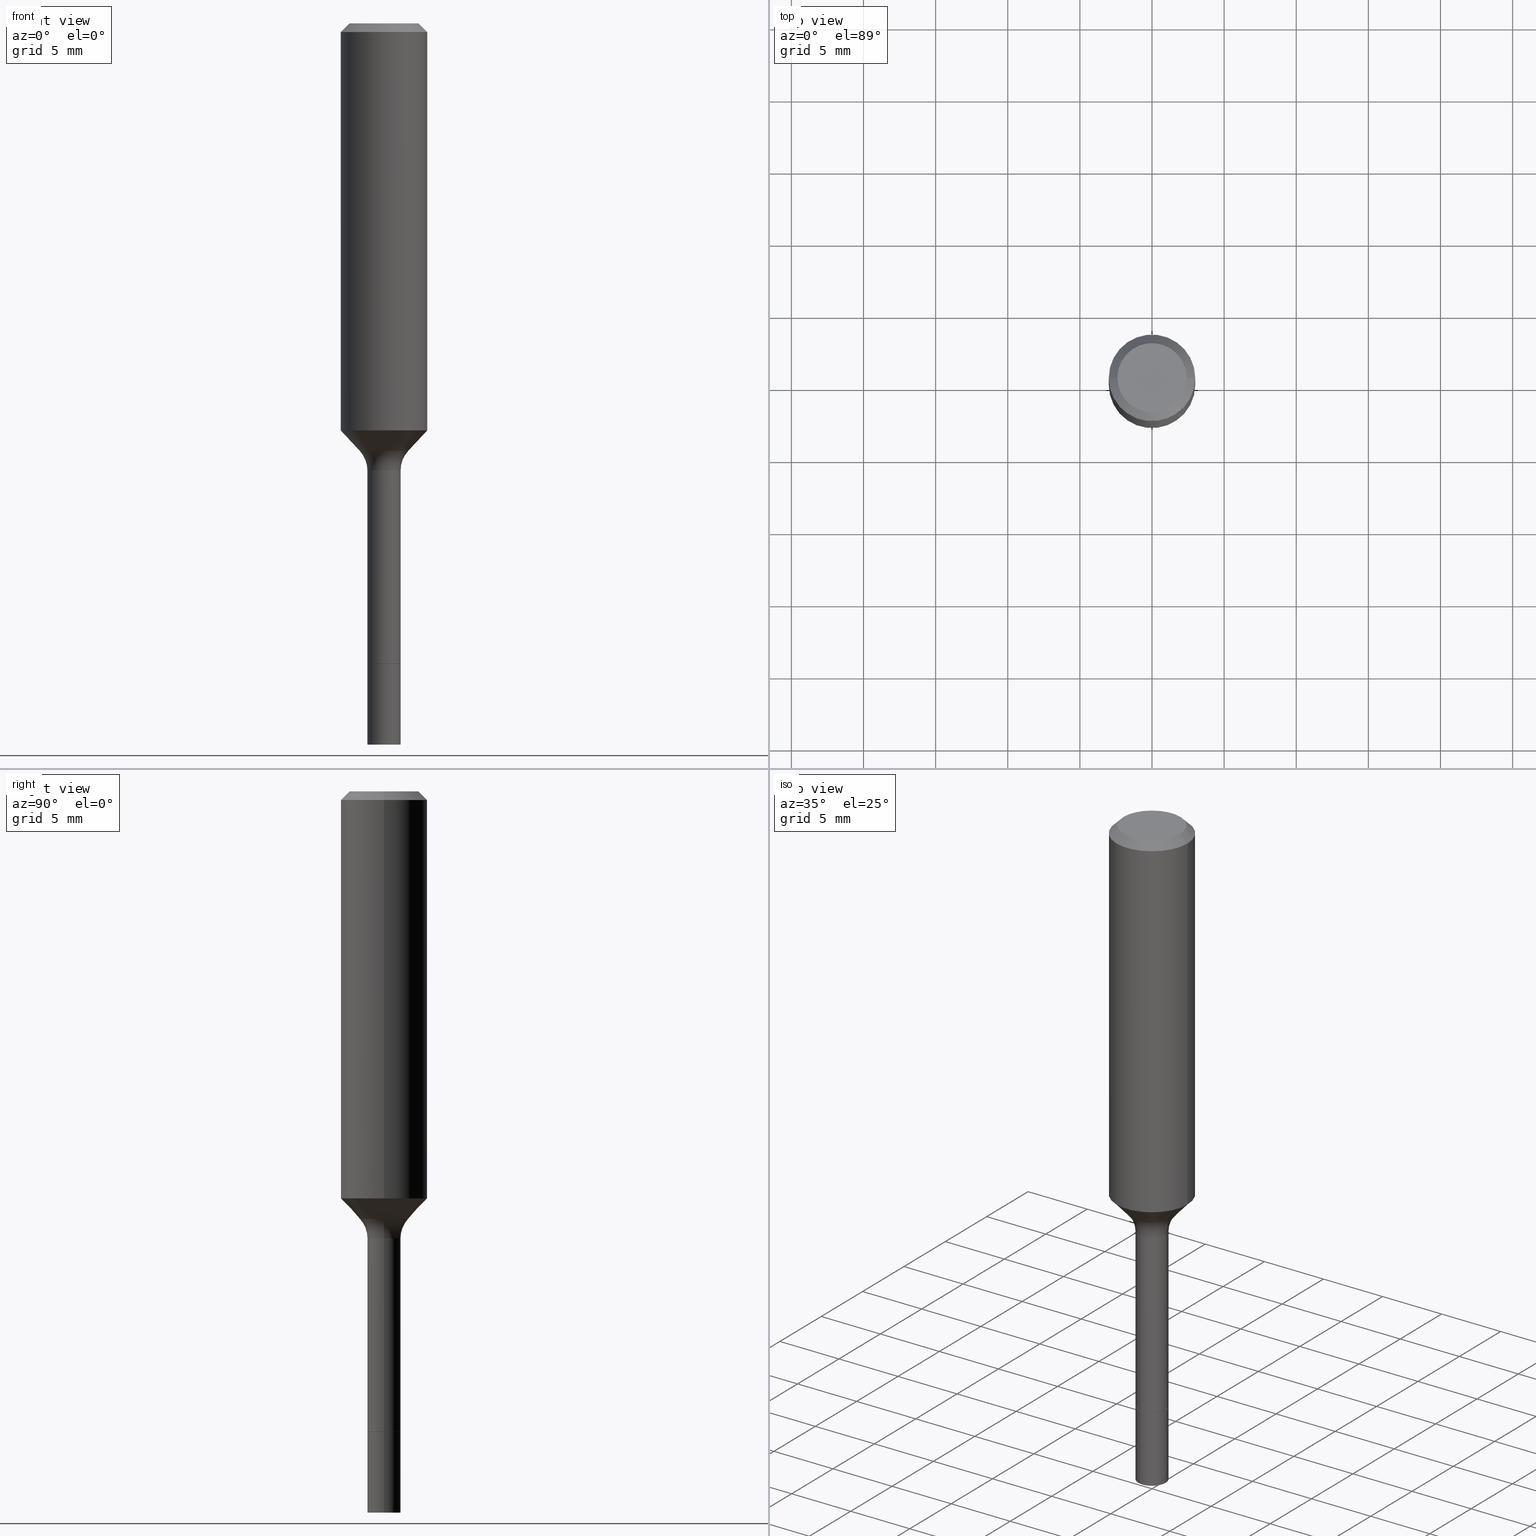
[diagram: canonical four-view strip — front | top / right | iso, engineering-drawing reading convention]
A machine part, canonical four-view strip (front | top / right | iso — engineering-drawing reading convention). The complete STEP part file that produces these views, byte-faithful:
ISO-10303-21;
HEADER;
FILE_DESCRIPTION (( 'STEP AP203' ),
    '1' );
FILE_NAME ('67068.STEP',
    '2025-04-01T15:27:25',
    ( '' ),
    ( '' ),
    'SwSTEP 2.0',
    'SolidWorks 2024',
    '' );
FILE_SCHEMA (( 'CONFIG_CONTROL_DESIGN' ));
ENDSEC;

DATA;
#1 = VERTEX_POINT ( 'NONE', #415 ) ;
#2 = PERSON_AND_ORGANIZATION ( #445, #25 ) ;
#3 = CARTESIAN_POINT ( 'NONE',  ( -0.04529999999999993060, -4.858609577209192694E-15, -1.220499999999999918 ) ) ;
#4 = ORIENTED_EDGE ( 'NONE', *, *, #148, .T. ) ;
#5 = AXIS2_PLACEMENT_3D ( 'NONE', #478, #119, #261 ) ;
#6 = CONICAL_SURFACE ( 'NONE', #41, 0.1180999999999999966, 0.7853981633974463916 ) ;
#7 = ADVANCED_FACE ( 'NONE', ( #62 ), #470, .T. ) ;
#8 = CARTESIAN_POINT ( 'NONE',  ( 4.813905344975441835E-29, -6.872981015512731707E-15, -1.968500000000000139 ) ) ;
#9 = ORIENTED_EDGE ( 'NONE', *, *, #378, .F. ) ;
#10 = DIRECTION ( 'NONE',  ( 1.000000000000000000, -6.982962677686265133E-15, 0.000000000000000000 ) ) ;
#11 = EDGE_CURVE ( 'NONE', #54, #259, #20, .T. ) ;
#12 = ORIENTED_EDGE ( 'NONE', *, *, #77, .F. ) ;
#13 = CARTESIAN_POINT ( 'NONE',  ( 0.06679170387046629020, -4.537262185582210403E-15, -1.165940131195000173 ) ) ;
#14 = CLOSED_SHELL ( 'NONE', ( #274, #70, #95, #7, #479, #490, #508, #502, #460, #357, #260, #235, #312, #182 ) ) ;
#15 = AXIS2_PLACEMENT_3D ( 'NONE', #96, #252, #222 ) ;
#16 = DIRECTION ( 'NONE',  ( -2.445468806185136597E-29, 3.491481338843145583E-15, 1.000000000000000000 ) ) ;
#17 = VERTEX_POINT ( 'NONE', #226 ) ;
#18 = EDGE_CURVE ( 'NONE', #481, #494, #454, .T. ) ;
#19 = DIRECTION ( 'NONE',  ( -2.445468806185136597E-29, 3.491481338843145583E-15, 1.000000000000000000 ) ) ;
#20 = LINE ( 'NONE', #293, #394 ) ;
#21 = EDGE_CURVE ( 'NONE', #326, #489, #24, .T. ) ;
#22 = CARTESIAN_POINT ( 'NONE',  ( 0.000000000000000000, 0.000000000000000000, 0.000000000000000000 ) ) ;
#23 = ORIENTED_EDGE ( 'NONE', *, *, #11, .F. ) ;
#24 = CIRCLE ( 'NONE', #380, 0.04529999999999999999 ) ;
#25 = ORGANIZATION ( 'UNSPECIFIED', 'UNSPECIFIED', '' ) ;
#26 = CARTESIAN_POINT ( 'NONE',  ( -0.06679170387046629020, -3.596274610333675855E-15, -1.165940131195000173 ) ) ;
#27 = CIRCLE ( 'NONE', #81, 0.04529999999999999999 ) ;
#28 = APPLICATION_CONTEXT ( 'configuration controlled 3d designs of mechanical parts and assemblies' ) ;
#29 = CARTESIAN_POINT ( 'NONE',  ( 4.272234004405433917E-29, -6.099617898958976438E-15, -1.747000000000000330 ) ) ;
#30 = APPROVAL_ROLE ( '' ) ;
#31 = DIRECTION ( 'NONE',  ( -2.445468806185136597E-29, 3.491481338843145583E-15, 1.000000000000000000 ) ) ;
#32 = DIRECTION ( 'NONE',  ( -2.445468806185136597E-29, 3.491481338843145583E-15, 1.000000000000000000 ) ) ;
#33 = AXIS2_PLACEMENT_3D ( 'NONE', #128, #364, #10 ) ;
#34 = DIRECTION ( 'NONE',  ( 2.438088387897960049E-29, -3.491481338843145188E-15, -1.000000000000000000 ) ) ;
#35 = FACE_OUTER_BOUND ( 'NONE', #495, .T. ) ;
#36 = COORDINATED_UNIVERSAL_TIME_OFFSET ( 5, 0, .BEHIND. ) ;
#37 = CARTESIAN_POINT ( 'NONE',  ( 0.1181000000000001354, -4.703439871600973275E-15, -1.110918719861007542 ) ) ;
#38 = CC_DESIGN_PERSON_AND_ORGANIZATION_ASSIGNMENT ( #197, #514, ( #308 ) ) ;
#39 = DIRECTION ( 'NONE',  ( 1.000000000000000000, -6.982962677686263555E-15, 0.000000000000000000 ) ) ;
#40 = EDGE_CURVE ( 'NONE', #494, #279, #174, .T. ) ;
#41 = AXIS2_PLACEMENT_3D ( 'NONE', #233, #198, #346 ) ;
#42 = LOCAL_TIME ( 11, 27, 25.00000000000000000, #46 ) ;
#43 = CONICAL_SURFACE ( 'NONE', #110, 0.06679170387046631796, 0.7504915783575621946 ) ;
#44 = CARTESIAN_POINT ( 'NONE',  ( 2.851270220716778580E-29, -4.070858210275671756E-15, -1.165940131195000173 ) ) ;
#45 = ORIENTED_EDGE ( 'NONE', *, *, #172, .F. ) ;
#46 = COORDINATED_UNIVERSAL_TIME_OFFSET ( 5, 0, .BEHIND. ) ;
#47 = PLANE ( 'NONE',  #506 ) ;
#48 = MANIFOLD_SOLID_BREP ( 'Body-Move/Copy2[1]', #115 ) ;
#49 = DIRECTION ( 'NONE',  ( 1.000000000000000000, -6.982962677686259611E-15, 0.000000000000000000 ) ) ;
#50 = ORIENTED_EDGE ( 'NONE', *, *, #358, .F. ) ;
#51 = AXIS2_PLACEMENT_3D ( 'NONE', #366, #417, #329 ) ;
#52 = EDGE_CURVE ( 'NONE', #487, #494, #146, .T. ) ;
#53 = DIRECTION ( 'NONE',  ( 2.438088387897960049E-29, -3.491481338843145188E-15, -1.000000000000000000 ) ) ;
#54 = VERTEX_POINT ( 'NONE', #13 ) ;
#55 =( CONVERSION_BASED_UNIT ( 'INCH', #456 ) LENGTH_UNIT ( ) NAMED_UNIT ( #221 ) );
#56 = ORIENTED_EDGE ( 'NONE', *, *, #40, .F. ) ;
#57 = CARTESIAN_POINT ( 'NONE',  ( 4.813905344975441835E-29, -6.872981015512731707E-15, -1.968500000000000139 ) ) ;
#58 = EDGE_LOOP ( 'NONE', ( #363, #68 ) ) ;
#59 = VECTOR ( 'NONE', #315, 39.37007874015748143 ) ;
#60 = CARTESIAN_POINT ( 'NONE',  ( -0.1180999999999999966, -1.141459413362170855E-15, -0.02362000000000013741 ) ) ;
#61 = ORIENTED_EDGE ( 'NONE', *, *, #466, .T. ) ;
#62 = FACE_OUTER_BOUND ( 'NONE', #328, .T. ) ;
#63 = CC_DESIGN_PERSON_AND_ORGANIZATION_ASSIGNMENT ( #76, #161, ( #267 ) ) ;
#64 =( NAMED_UNIT ( * ) SI_UNIT ( $, .STERADIAN. ) SOLID_ANGLE_UNIT ( ) );
#65 = ORIENTED_EDGE ( 'NONE', *, *, #277, .T. ) ;
#66 = APPROVAL_PERSON_ORGANIZATION ( #225, #87, #30 ) ;
#67 = AXIS2_PLACEMENT_3D ( 'NONE', #78, #430, #230 ) ;
#68 = ORIENTED_EDGE ( 'NONE', *, *, #206, .T. ) ;
#69 = LINE ( 'NONE', #474, #156 ) ;
#70 = ADVANCED_FACE ( 'NONE', ( #175 ), #339, .T. ) ;
#71 = CARTESIAN_POINT ( 'NONE',  ( 4.273456738808526158E-29, -6.101363639628397942E-15, -1.747500000000000053 ) ) ;
#72 = CIRCLE ( 'NONE', #423, 0.04529999999999993060 ) ;
#73 = CARTESIAN_POINT ( 'NONE',  ( 0.04530000000000011795, -7.189309224811920776E-15, -1.968500000000000139 ) ) ;
#74 = DATE_AND_TIME ( #421, #208 ) ;
#75 = LINE ( 'NONE', #190, #361 ) ;
#76 = PERSON_AND_ORGANIZATION ( #445, #25 ) ;
#77 = EDGE_CURVE ( 'NONE', #1, #169, #330, .T. ) ;
#78 = CARTESIAN_POINT ( 'NONE',  ( 0.1252999999999999670, -5.136318197572148171E-15, -1.220499999999999918 ) ) ;
#79 = CALENDAR_DATE ( 2025, 1, 4 ) ;
#80 = DIRECTION ( 'NONE',  ( 1.000000000000000000, -6.982962677686267499E-15, 4.875432709231658792E-29 ) ) ;
#81 = AXIS2_PLACEMENT_3D ( 'NONE', #350, #469, #505 ) ;
#82 = LOCAL_TIME ( 11, 27, 25.00000000000000000, #164 ) ;
#83 = ORIENTED_EDGE ( 'NONE', *, *, #426, .F. ) ;
#84 = CIRCLE ( 'NONE', #15, 0.1180999999999999966 ) ;
#85 = DATE_AND_TIME ( #317, #132 ) ;
#86 = CYLINDRICAL_SURFACE ( 'NONE', #176, 0.1181000000000000660 ) ;
#87 = APPROVAL ( #461, 'UNSPECIFIED' ) ;
#88 = ORIENTED_EDGE ( 'NONE', *, *, #191, .F. ) ;
#89 = CARTESIAN_POINT ( 'NONE',  ( -0.04529999999999999999, -6.165296468271238208E-15, -1.747500000000000053 ) ) ;
#90 = ORIENTED_EDGE ( 'NONE', *, *, #11, .T. ) ;
#91 = FACE_OUTER_BOUND ( 'NONE', #167, .T. ) ;
#92 = ORIENTED_EDGE ( 'NONE', *, *, #191, .T. ) ;
#93 = AXIS2_PLACEMENT_3D ( 'NONE', #118, #228, #149 ) ;
#94 = EDGE_LOOP ( 'NONE', ( #477, #403, #296, #418 ) ) ;
#95 = ADVANCED_FACE ( 'NONE', ( #390 ), #116, .T. ) ;
#96 = CARTESIAN_POINT ( 'NONE',  ( 5.776197320209326656E-31, -8.246878922347558061E-17, -0.02362000000000013741 ) ) ;
#97 = ORIENTED_EDGE ( 'NONE', *, *, #392, .F. ) ;
#98 = DIRECTION ( 'NONE',  ( 1.000000000000000000, -6.982962677686263555E-15, 0.000000000000000000 ) ) ;
#99 = ORIENTED_EDGE ( 'NONE', *, *, #358, .T. ) ;
#100 = AXIS2_PLACEMENT_3D ( 'NONE', #510, #512, #509 ) ;
#101 = FACE_OUTER_BOUND ( 'NONE', #140, .T. ) ;
#102 = CARTESIAN_POINT ( 'NONE',  ( -0.1181000000000000660, 8.391509709326787887E-16, -5.809262341591047287E-30 ) ) ;
#103 = ADVANCED_BREP_SHAPE_REPRESENTATION ( '67068', ( #48, #227, #5 ), #397 ) ;
#104 =( NAMED_UNIT ( * ) PLANE_ANGLE_UNIT ( ) SI_UNIT ( $, .RADIAN. ) );
#105 = ORIENTED_EDGE ( 'NONE', *, *, #367, .T. ) ;
#106 = EDGE_CURVE ( 'NONE', #333, #489, #432, .T. ) ;
#107 = ORIENTED_EDGE ( 'NONE', *, *, #285, .F. ) ;
#108 = VECTOR ( 'NONE', #476, 39.37007874015748143 ) ;
#109 = SECURITY_CLASSIFICATION ( '', '', #349 ) ;
#110 = AXIS2_PLACEMENT_3D ( 'NONE', #290, #409, #98 ) ;
#111 = DIRECTION ( 'NONE',  ( -2.445468806185136597E-29, 3.491481338843145583E-15, 1.000000000000000000 ) ) ;
#112 = DIRECTION ( 'NONE',  ( -1.000000000000000000, 6.982962677686266711E-15, 0.000000000000000000 ) ) ;
#113 = CARTESIAN_POINT ( 'NONE',  ( 4.273456738808526719E-29, -6.101363639628398731E-15, -1.747500000000000497 ) ) ;
#114 = EDGE_CURVE ( 'NONE', #169, #17, #75, .T. ) ;
#115 = CLOSED_SHELL ( 'NONE', ( #134, #386, #455, #408 ) ) ;
#116 = CYLINDRICAL_SURFACE ( 'NONE', #309, 0.1181000000000000660 ) ;
#117 = APPROVAL_DATE_TIME ( #85, #87 ) ;
#118 = CARTESIAN_POINT ( 'NONE',  ( 4.813905344975441835E-29, -6.872981015512731707E-15, -1.968500000000000139 ) ) ;
#119 = DIRECTION ( 'NONE',  ( 0.000000000000000000, 0.000000000000000000, 1.000000000000000000 ) ) ;
#120 = CARTESIAN_POINT ( 'NONE',  ( -0.1252999999999999670, -3.371042926150653729E-15, -1.220499999999999918 ) ) ;
#121 = ORIENTED_EDGE ( 'NONE', *, *, #471, .F. ) ;
#122 = APPROVAL_DATE_TIME ( #74, #195 ) ;
#123 = DIRECTION ( 'NONE',  ( 7.105427357601001859E-15, 1.000000000000000000, -3.491481338843145583E-15 ) ) ;
#124 = AXIS2_PLACEMENT_3D ( 'NONE', #518, #353, #80 ) ;
#125 = ORIENTED_EDGE ( 'NONE', *, *, #18, .T. ) ;
#126 = CARTESIAN_POINT ( 'NONE',  ( 4.273456738808526719E-29, -6.101363639628398731E-15, -1.747500000000000497 ) ) ;
#127 = ORIENTED_EDGE ( 'NONE', *, *, #378, .T. ) ;
#128 = CARTESIAN_POINT ( 'NONE',  ( 2.716717075627218556E-29, -3.878751979366224224E-15, -1.110918719861007542 ) ) ;
#129 = APPLICATION_CONTEXT ( 'configuration controlled 3d designs of mechanical parts and assemblies' ) ;
#130 = PLANE ( 'NONE',  #513 ) ;
#131 = ORIENTED_EDGE ( 'NONE', *, *, #468, .F. ) ;
#132 = LOCAL_TIME ( 11, 27, 25.00000000000000000, #36 ) ;
#133 = AXIS2_PLACEMENT_3D ( 'NONE', #286, #283, #439 ) ;
#134 = ADVANCED_FACE ( 'NONE', ( #196 ), #154, .T. ) ;
#135 = CARTESIAN_POINT ( 'NONE',  ( -0.09447999999999998066, 7.009847083995354710E-16, -3.085620075132147757E-17 ) ) ;
#136 = ORIENTED_EDGE ( 'NONE', *, *, #52, .F. ) ;
#137 = CARTESIAN_POINT ( 'NONE',  ( 0.000000000000000000, 0.000000000000000000, 0.000000000000000000 ) ) ;
#138 = ORIENTED_EDGE ( 'NONE', *, *, #299, .F. ) ;
#139 = CARTESIAN_POINT ( 'NONE',  ( 2.984694677948959472E-29, -4.261352974058059028E-15, -1.220499999999999918 ) ) ;
#140 = EDGE_LOOP ( 'NONE', ( #138, #365, #105, #83 ) ) ;
#141 = AXIS2_PLACEMENT_3D ( 'NONE', #318, #480, #441 ) ;
#142 = LINE ( 'NONE', #216, #332 ) ;
#143 = EDGE_LOOP ( 'NONE', ( #97, #50 ) ) ;
#144 = EDGE_CURVE ( 'NONE', #17, #291, #27, .T. ) ;
#145 = CARTESIAN_POINT ( 'NONE',  ( 2.716717075627218556E-29, -3.878751979366224224E-15, -1.110918719861007542 ) ) ;
#146 = LINE ( 'NONE', #298, #287 ) ;
#147 = APPLICATION_PROTOCOL_DEFINITION ( 'international standard', 'config_control_design', 1994, #28 ) ;
#148 = EDGE_CURVE ( 'NONE', #442, #326, #343, .T. ) ;
#149 = DIRECTION ( 'NONE',  ( 1.000000000000000000, -6.982962677686273810E-15, 0.000000000000000000 ) ) ;
#150 = VECTOR ( 'NONE', #159, 39.37007874015748143 ) ;
#151 = DIRECTION ( 'NONE',  ( -0.7071067811864267805, 7.493145998869918709E-15, 0.7071067811866682540 ) ) ;
#152 = DIRECTION ( 'NONE',  ( -2.445468806185136597E-29, 3.491481338843145583E-15, 1.000000000000000000 ) ) ;
#153 = CC_DESIGN_DATE_AND_TIME_ASSIGNMENT ( #240, #203, ( #109 ) ) ;
#154 = CYLINDRICAL_SURFACE ( 'NONE', #236, 0.04530000000000006244 ) ;
#155 = PERSON_AND_ORGANIZATION ( #445, #25 ) ;
#156 = VECTOR ( 'NONE', #229, 39.37007874015748143 ) ;
#157 = CARTESIAN_POINT ( 'NONE',  ( 4.272234004405433917E-29, -6.099617898958976438E-15, -1.747000000000000330 ) ) ;
#158 = COORDINATED_UNIVERSAL_TIME_OFFSET ( 5, 0, .BEHIND. ) ;
#159 = DIRECTION ( 'NONE',  ( -2.445468806185136877E-29, 3.491481338843145188E-15, 1.000000000000000000 ) ) ;
#160 = EDGE_LOOP ( 'NONE', ( #215, #99, #4, #407 ) ) ;
#161 = PERSON_AND_ORGANIZATION_ROLE ( 'design_owner' ) ;
#162 = PLANE ( 'NONE',  #141 ) ;
#163 = EDGE_LOOP ( 'NONE', ( #360, #181, #61, #56 ) ) ;
#164 = COORDINATED_UNIVERSAL_TIME_OFFSET ( 5, 0, .BEHIND. ) ;
#165 = FACE_OUTER_BOUND ( 'NONE', #58, .T. ) ;
#166 = AXIS2_PLACEMENT_3D ( 'NONE', #120, #123, #275 ) ;
#167 = EDGE_LOOP ( 'NONE', ( #131, #12 ) ) ;
#168 = LINE ( 'NONE', #399, #150 ) ;
#169 = VERTEX_POINT ( 'NONE', #73 ) ;
#170 = CC_DESIGN_APPROVAL ( #195, ( #109 ) ) ;
#171 = CARTESIAN_POINT ( 'NONE',  ( -0.06679170387046631796, -3.596274610333675855E-15, -1.165940131195000173 ) ) ;
#172 = EDGE_CURVE ( 'NONE', #54, #449, #201, .T. ) ;
#173 = ORIENTED_EDGE ( 'NONE', *, *, #426, .T. ) ;
#174 = CIRCLE ( 'NONE', #307, 0.1180999999999999966 ) ;
#175 = FACE_OUTER_BOUND ( 'NONE', #410, .T. ) ;
#176 = AXIS2_PLACEMENT_3D ( 'NONE', #406, #211, #202 ) ;
#177 = AXIS2_PLACEMENT_3D ( 'NONE', #137, #295, #413 ) ;
#178 = CYLINDRICAL_SURFACE ( 'NONE', #177, 0.04529999999999996529 ) ;
#179 = ORIENTED_EDGE ( 'NONE', *, *, #431, .F. ) ;
#180 = DIRECTION ( 'NONE',  ( 1.000000000000000000, -6.982962677686267499E-15, 4.883557194083113462E-29 ) ) ;
#181 = ORIENTED_EDGE ( 'NONE', *, *, #428, .T. ) ;
#182 = ADVANCED_FACE ( 'NONE', ( #427 ), #263, .T. ) ;
#183 = DIRECTION ( 'NONE',  ( 0.6819983600624988096, -2.208861293262478564E-15, 0.7313537016191701268 ) ) ;
#184 = VECTOR ( 'NONE', #220, 39.37007874015748143 ) ;
#185 = LOCAL_TIME ( 11, 27, 25.00000000000000000, #396 ) ;
#186 = CIRCLE ( 'NONE', #166, 0.08000000000000002942 ) ;
#187 = CYLINDRICAL_SURFACE ( 'NONE', #51, 0.04530000000000006244 ) ;
#188 = CARTESIAN_POINT ( 'NONE',  ( 5.776197320209326656E-31, -8.246878922347558061E-17, -0.02362000000000013741 ) ) ;
#189 = APPROVAL_ROLE ( '' ) ;
#190 = CARTESIAN_POINT ( 'NONE',  ( 0.04530000000000006244, -6.417691848927585433E-15, -1.747500000000000053 ) ) ;
#191 = EDGE_CURVE ( 'NONE', #251, #487, #248, .T. ) ;
#192 = DIRECTION ( 'NONE',  ( -2.445468806185136597E-29, 3.491481338843145583E-15, 1.000000000000000000 ) ) ;
#193 = CIRCLE ( 'NONE', #369, 0.04479999999999999954 ) ;
#194 = CARTESIAN_POINT ( 'NONE',  ( 0.09447999999999998066, -7.704367267948738690E-16, -3.085620075131172158E-17 ) ) ;
#195 = APPROVAL ( #351, 'UNSPECIFIED' ) ;
#196 = FACE_OUTER_BOUND ( 'NONE', #284, .T. ) ;
#197 = PERSON_AND_ORGANIZATION ( #445, #25 ) ;
#198 = DIRECTION ( 'NONE',  ( 2.445468806185136597E-29, -3.491481338843145583E-15, -1.000000000000000000 ) ) ;
#199 = DATE_AND_TIME ( #79, #185 ) ;
#200 = CC_DESIGN_APPROVAL ( #87, ( #375 ) ) ;
#201 = CIRCLE ( 'NONE', #67, 0.08000000000000002942 ) ;
#202 = DIRECTION ( 'NONE',  ( 1.000000000000000000, -6.982962677686266711E-15, 4.876176775795936353E-29 ) ) ;
#203 = DATE_TIME_ROLE ( 'classification_date' ) ;
#204 = DIRECTION ( 'NONE',  ( -2.445468806185136597E-29, 3.491481338843145583E-15, 1.000000000000000000 ) ) ;
#205 = ORIENTED_EDGE ( 'NONE', *, *, #277, .F. ) ;
#206 = EDGE_CURVE ( 'NONE', #291, #17, #388, .T. ) ;
#207 = MECHANICAL_CONTEXT ( 'NONE', #129, 'mechanical' ) ;
#208 = LOCAL_TIME ( 11, 27, 25.00000000000000000, #158 ) ;
#209 = DIRECTION ( 'NONE',  ( -2.445468806185136597E-29, 3.491481338843145583E-15, 1.000000000000000000 ) ) ;
#210 = ORIENTED_EDGE ( 'NONE', *, *, #285, .T. ) ;
#211 = DIRECTION ( 'NONE',  ( -2.445468806185136597E-29, 3.491481338843145583E-15, 1.000000000000000000 ) ) ;
#212 = AXIS2_PLACEMENT_3D ( 'NONE', #44, #204, #355 ) ;
#213 = EDGE_LOOP ( 'NONE', ( #438, #244, #372, #253 ) ) ;
#214 = DIRECTION ( 'NONE',  ( 1.000000000000000000, -6.982962677686260400E-15, 0.000000000000000000 ) ) ;
#215 = ORIENTED_EDGE ( 'NONE', *, *, #106, .F. ) ;
#216 = CARTESIAN_POINT ( 'NONE',  ( 0.1181000000000000660, -8.246878922347485584E-16, 5.758764772215003944E-30 ) ) ;
#217 = ORIENTED_EDGE ( 'NONE', *, *, #40, .T. ) ;
#218 = VECTOR ( 'NONE', #151, 39.37007874015748143 ) ;
#219 = EDGE_LOOP ( 'NONE', ( #179, #9, #276, #217 ) ) ;
#220 = DIRECTION ( 'NONE',  ( -2.445468806185136877E-29, 3.491481338843145188E-15, 1.000000000000000000 ) ) ;
#221 = DIMENSIONAL_EXPONENTS ( 1.000000000000000000, 0.000000000000000000, 0.000000000000000000, 0.000000000000000000, 0.000000000000000000, 0.000000000000000000, 0.000000000000000000 ) ;
#222 = DIRECTION ( 'NONE',  ( 1.000000000000000000, -6.982962677686266711E-15, 0.000000000000000000 ) ) ;
#223 = ORIENTED_EDGE ( 'NONE', *, *, #471, .T. ) ;
#224 = VECTOR ( 'NONE', #488, 39.37007874015748143 ) ;
#225 = PERSON_AND_ORGANIZATION ( #445, #25 ) ;
#226 = CARTESIAN_POINT ( 'NONE',  ( 0.04529999999999999999, -6.417691848927585433E-15, -1.747500000000000053 ) ) ;
#227 = MANIFOLD_SOLID_BREP ( 'Body-Move/Copy2[2]', #14 ) ;
#228 = DIRECTION ( 'NONE',  ( -2.445468806185136597E-29, 3.491481338843145583E-15, 1.000000000000000000 ) ) ;
#229 = DIRECTION ( 'NONE',  ( -2.445468806185136877E-29, 3.491481338843145188E-15, 1.000000000000000000 ) ) ;
#230 = DIRECTION ( 'NONE',  ( 1.000000000000000000, -6.982962677686269077E-15, 0.000000000000000000 ) ) ;
#231 = APPROVAL_STATUS ( 'not_yet_approved' ) ;
#232 = EDGE_CURVE ( 'NONE', #1, #291, #69, .T. ) ;
#233 = CARTESIAN_POINT ( 'NONE',  ( 5.776197320209326656E-31, -8.246878922347558061E-17, -0.02362000000000013741 ) ) ;
#234 = LINE ( 'NONE', #393, #59 ) ;
#235 = ADVANCED_FACE ( 'NONE', ( #35 ), #387, .F. ) ;
#236 = AXIS2_PLACEMENT_3D ( 'NONE', #463, #32, #306 ) ;
#237 = AXIS2_PLACEMENT_3D ( 'NONE', #57, #250, #336 ) ;
#238 = CARTESIAN_POINT ( 'NONE',  ( 0.04479999999999999954, -6.414200367588743214E-15, -1.747500000000000497 ) ) ;
#239 = EDGE_LOOP ( 'NONE', ( #457, #107, #420, #289 ) ) ;
#240 = DATE_AND_TIME ( #429, #82 ) ;
#241 = DIRECTION ( 'NONE',  ( -2.445468806185136597E-29, 3.491481338843145583E-15, 1.000000000000000000 ) ) ;
#242 = ORIENTED_EDGE ( 'NONE', *, *, #281, .T. ) ;
#243 = DIRECTION ( 'NONE',  ( -1.000000000000000000, 6.982962677686265922E-15, -4.876176775795935793E-29 ) ) ;
#244 = ORIENTED_EDGE ( 'NONE', *, *, #77, .T. ) ;
#245 = CC_DESIGN_DATE_AND_TIME_ASSIGNMENT ( #199, #475, ( #375 ) ) ;
#246 = CARTESIAN_POINT ( 'NONE',  ( 2.851270220716778580E-29, -4.070858210275671756E-15, -1.165940131195000173 ) ) ;
#247 = AXIS2_PLACEMENT_3D ( 'NONE', #374, #381, #337 ) ;
#248 = CIRCLE ( 'NONE', #382, 0.09447999999999998066 ) ;
#249 = EDGE_LOOP ( 'NONE', ( #205, #459, #90, #440 ) ) ;
#250 = DIRECTION ( 'NONE',  ( -2.445468806185136597E-29, 3.491481338843145583E-15, 1.000000000000000000 ) ) ;
#251 = VERTEX_POINT ( 'NONE', #194 ) ;
#252 = DIRECTION ( 'NONE',  ( -2.445468806185136597E-29, 3.491481338843145583E-15, 1.000000000000000000 ) ) ;
#253 = ORIENTED_EDGE ( 'NONE', *, *, #206, .F. ) ;
#254 = DIRECTION ( 'NONE',  ( 1.000000000000000000, -6.982962677686267499E-15, 4.883557194083113462E-29 ) ) ;
#255 = ORIENTED_EDGE ( 'NONE', *, *, #232, .T. ) ;
#256 = AXIS2_PLACEMENT_3D ( 'NONE', #268, #192, #344 ) ;
#257 = DIRECTION ( 'NONE',  ( -2.445468806185136597E-29, 3.491481338843145583E-15, 1.000000000000000000 ) ) ;
#258 = ORIENTED_EDGE ( 'NONE', *, *, #392, .T. ) ;
#259 = VERTEX_POINT ( 'NONE', #37 ) ;
#260 = ADVANCED_FACE ( 'NONE', ( #467 ), #6, .T. ) ;
#261 = DIRECTION ( 'NONE',  ( 1.000000000000000000, 0.000000000000000000, 0.000000000000000000 ) ) ;
#262 = DIRECTION ( 'NONE',  ( -0.7071067811865461294, 2.468850131082242072E-15, -0.7071067811865489050 ) ) ;
#263 = CONICAL_SURFACE ( 'NONE', #256, 0.04479999999999999954, 0.7853981633972775267 ) ;
#264 = AXIS2_PLACEMENT_3D ( 'NONE', #139, #19, #180 ) ;
#265 = DIRECTION ( 'NONE',  ( 2.445468806185136597E-29, -3.491481338843145583E-15, -1.000000000000000000 ) ) ;
#266 = DIRECTION ( 'NONE',  ( 1.000000000000000000, -6.982962677686271444E-15, 0.000000000000000000 ) ) ;
#267 = PRODUCT ( '67068', '67068', '', ( #207 ) ) ;
#268 = CARTESIAN_POINT ( 'NONE',  ( 4.273456738808526719E-29, -6.101363639628398731E-15, -1.747500000000000497 ) ) ;
#269 = EDGE_CURVE ( 'NONE', #449, #400, #352, .T. ) ;
#270 = CARTESIAN_POINT ( 'NONE',  ( 3.772893820736570314E-46, -5.386692455541008845E-32, -1.542810037565835988E-17 ) ) ;
#271 = EDGE_CURVE ( 'NONE', #489, #326, #294, .T. ) ;
#272 = CARTESIAN_POINT ( 'NONE',  ( 0.04479999999999999954, -6.414200367588743214E-15, -1.747500000000000497 ) ) ;
#273 = APPROVAL_DATE_TIME ( #401, #322 ) ;
#274 = ADVANCED_FACE ( 'NONE', ( #311 ), #446, .T. ) ;
#275 = DIRECTION ( 'NONE',  ( -1.000000000000000000, 7.105427357601001859E-15, 0.000000000000000000 ) ) ;
#276 = ORIENTED_EDGE ( 'NONE', *, *, #52, .T. ) ;
#277 = EDGE_CURVE ( 'NONE', #501, #481, #515, .T. ) ;
#278 = CARTESIAN_POINT ( 'NONE',  ( -0.04479999999999999954, -5.780391266833762206E-15, -1.747500000000000497 ) ) ;
#279 = VERTEX_POINT ( 'NONE', #437 ) ;
#280 = DIRECTION ( 'NONE',  ( -2.445468806185136597E-29, 3.491481338843145583E-15, 1.000000000000000000 ) ) ;
#281 = EDGE_CURVE ( 'NONE', #501, #400, #186, .T. ) ;
#282 = ORIENTED_EDGE ( 'NONE', *, *, #431, .T. ) ;
#283 = DIRECTION ( 'NONE',  ( -2.445468806185136597E-29, 3.491481338843145583E-15, 1.000000000000000000 ) ) ;
#284 = EDGE_LOOP ( 'NONE', ( #497, #255, #316, #484 ) ) ;
#285 = EDGE_CURVE ( 'NONE', #54, #501, #414, .T. ) ;
#286 = CARTESIAN_POINT ( 'NONE',  ( 4.273456738808526719E-29, -6.101363639628398731E-15, -1.747500000000000497 ) ) ;
#287 = VECTOR ( 'NONE', #262, 39.37007874015748143 ) ;
#288 = ORIENTED_EDGE ( 'NONE', *, *, #148, .F. ) ;
#289 = ORIENTED_EDGE ( 'NONE', *, *, #269, .T. ) ;
#290 = CARTESIAN_POINT ( 'NONE',  ( 2.851270220716778580E-29, -4.070858210275671756E-15, -1.165940131195000173 ) ) ;
#291 = VERTEX_POINT ( 'NONE', #89 ) ;
#292 = CARTESIAN_POINT ( 'NONE',  ( 0.04529999999999993060, -4.577681183357246518E-15, -1.220499999999999918 ) ) ;
#293 = CARTESIAN_POINT ( 'NONE',  ( 0.06679170387046631796, -4.537262185582211192E-15, -1.165940131195000173 ) ) ;
#294 = CIRCLE ( 'NONE', #345, 0.04529999999999999999 ) ;
#295 = DIRECTION ( 'NONE',  ( -2.445468806185136597E-29, 3.491481338843145583E-15, 1.000000000000000000 ) ) ;
#296 = ORIENTED_EDGE ( 'NONE', *, *, #269, .F. ) ;
#297 = CC_DESIGN_PERSON_AND_ORGANIZATION_ASSIGNMENT ( #504, #314, ( #109 ) ) ;
#298 = CARTESIAN_POINT ( 'NONE',  ( -0.1180999999999999966, 7.422191030112725094E-16, -0.02362000000000013741 ) ) ;
#299 = EDGE_CURVE ( 'NONE', #489, #400, #168, .T. ) ;
#300 = SHAPE_DEFINITION_REPRESENTATION ( #347, #103 ) ;
#301 = CARTESIAN_POINT ( 'NONE',  ( 7.545787641473140628E-46, -1.077338491108201769E-31, -3.085620075131671975E-17 ) ) ;
#302 = AXIS2_PLACEMENT_3D ( 'NONE', #465, #265, #112 ) ;
#303 = TOROIDAL_SURFACE ( 'NONE', #370, 0.1252999999999999670, 0.08000000000000002942 ) ;
#304 = DIRECTION ( 'NONE',  ( -2.445468806185136597E-29, 3.491481338843145583E-15, 1.000000000000000000 ) ) ;
#305 = DIRECTION ( 'NONE',  ( 1.000000000000000000, -6.982962677686271444E-15, 0.000000000000000000 ) ) ;
#306 = DIRECTION ( 'NONE',  ( 1.000000000000000000, -6.982962677686261189E-15, 0.000000000000000000 ) ) ;
#307 = AXIS2_PLACEMENT_3D ( 'NONE', #188, #499, #341 ) ;
#308 = PRODUCT_DEFINITION_FORMATION_WITH_SPECIFIED_SOURCE ( 'ANY', '', #267, .NOT_KNOWN. ) ;
#309 = AXIS2_PLACEMENT_3D ( 'NONE', #507, #31, #424 ) ;
#310 = CIRCLE ( 'NONE', #371, 0.1181000000000001354 ) ;
#311 = FACE_OUTER_BOUND ( 'NONE', #335, .T. ) ;
#312 = ADVANCED_FACE ( 'NONE', ( #402 ), #162, .F. ) ;
#313 = DESIGN_CONTEXT ( 'detailed design', #28, 'design' ) ;
#314 = PERSON_AND_ORGANIZATION_ROLE ( 'classification_officer' ) ;
#315 = DIRECTION ( 'NONE',  ( 0.7071067811865461294, -7.319954787623251312E-15, -0.7071067811865489050 ) ) ;
#316 = ORIENTED_EDGE ( 'NONE', *, *, #144, .F. ) ;
#317 = CALENDAR_DATE ( 2025, 1, 4 ) ;
#318 = CARTESIAN_POINT ( 'NONE',  ( -3.167613804733822568E-29, -1.675740017741478337E-14, -1.747500000000000497 ) ) ;
#319 = EDGE_LOOP ( 'NONE', ( #405, #242, #173, #45 ) ) ;
#320 = AXIS2_PLACEMENT_3D ( 'NONE', #22, #257, #448 ) ;
#321 = CIRCLE ( 'NONE', #212, 0.06679170387046631796 ) ;
#322 = APPROVAL ( #231, 'UNSPECIFIED' ) ;
#323 = CARTESIAN_POINT ( 'NONE',  ( 4.273456738808526158E-29, -6.101363639628397942E-15, -1.747500000000000053 ) ) ;
#324 = ORIENTED_EDGE ( 'NONE', *, *, #503, .T. ) ;
#325 = DIRECTION ( 'NONE',  ( -1.000000000000000000, 6.982962677686265922E-15, -4.876176775795935793E-29 ) ) ;
#326 = VERTEX_POINT ( 'NONE', #447 ) ;
#327 = FACE_OUTER_BOUND ( 'NONE', #163, .T. ) ;
#328 = EDGE_LOOP ( 'NONE', ( #210, #65, #451, #23 ) ) ;
#329 = DIRECTION ( 'NONE',  ( 1.000000000000000000, -6.982962677686261189E-15, 0.000000000000000000 ) ) ;
#330 = CIRCLE ( 'NONE', #93, 0.04530000000000011795 ) ;
#331 = CC_DESIGN_APPROVAL ( #322, ( #308 ) ) ;
#332 = VECTOR ( 'NONE', #498, 39.37007874015748143 ) ;
#333 = VERTEX_POINT ( 'NONE', #278 ) ;
#334 = FACE_OUTER_BOUND ( 'NONE', #249, .T. ) ;
#335 = EDGE_LOOP ( 'NONE', ( #258, #356, #434, #288 ) ) ;
#336 = DIRECTION ( 'NONE',  ( 1.000000000000000000, -6.982962677686273810E-15, 0.000000000000000000 ) ) ;
#337 = DIRECTION ( 'NONE',  ( 1.000000000000000000, -6.982962677686263555E-15, 0.000000000000000000 ) ) ;
#338 = DIRECTION ( 'NONE',  ( 1.000000000000000000, -6.982962677686271444E-15, 0.000000000000000000 ) ) ;
#339 = CONICAL_SURFACE ( 'NONE', #302, 0.1180999999999999966, 0.7853981633974463916 ) ;
#340 = CARTESIAN_POINT ( 'NONE',  ( -0.1181000000000001354, -3.039601008433544844E-15, -1.110918719861007542 ) ) ;
#341 = DIRECTION ( 'NONE',  ( 1.000000000000000000, -6.982962677686266711E-15, 0.000000000000000000 ) ) ;
#342 = PERSON_AND_ORGANIZATION ( #445, #25 ) ;
#343 = LINE ( 'NONE', #272, #472 ) ;
#344 = DIRECTION ( 'NONE',  ( 1.000000000000000000, -6.982962677686259611E-15, 0.000000000000000000 ) ) ;
#345 = AXIS2_PLACEMENT_3D ( 'NONE', #157, #152, #305 ) ;
#346 = DIRECTION ( 'NONE',  ( -1.000000000000000000, 6.982962677686266711E-15, 0.000000000000000000 ) ) ;
#347 = PRODUCT_DEFINITION_SHAPE ( 'NONE', 'NONE',  #375 ) ;
#348 = DIRECTION ( 'NONE',  ( -1.000000000000000000, 6.982962677686265922E-15, -4.876176775795935793E-29 ) ) ;
#349 = SECURITY_CLASSIFICATION_LEVEL ( 'unclassified' ) ;
#350 = CARTESIAN_POINT ( 'NONE',  ( 4.273456738808526158E-29, -6.101363639628397942E-15, -1.747500000000000053 ) ) ;
#351 = APPROVAL_STATUS ( 'not_yet_approved' ) ;
#352 = CIRCLE ( 'NONE', #100, 0.04529999999999993060 ) ;
#353 = DIRECTION ( 'NONE',  ( -2.445468806185136597E-29, 3.491481338843145583E-15, 1.000000000000000000 ) ) ;
#354 = APPROVAL_ROLE ( '' ) ;
#355 = DIRECTION ( 'NONE',  ( 1.000000000000000000, -6.982962677686263555E-15, 0.000000000000000000 ) ) ;
#356 = ORIENTED_EDGE ( 'NONE', *, *, #106, .T. ) ;
#357 = ADVANCED_FACE ( 'NONE', ( #327 ), #86, .T. ) ;
#358 = EDGE_CURVE ( 'NONE', #333, #442, #462, .T. ) ;
#359 = DIRECTION ( 'NONE',  ( 1.000000000000000000, -6.982962677686259611E-15, 0.000000000000000000 ) ) ;
#360 = ORIENTED_EDGE ( 'NONE', *, *, #18, .F. ) ;
#361 = VECTOR ( 'NONE', #385, 39.37007874015748143 ) ;
#362 = DIRECTION ( 'NONE',  ( 2.438088387897960049E-29, -3.491481338843145188E-15, -1.000000000000000000 ) ) ;
#363 = ORIENTED_EDGE ( 'NONE', *, *, #144, .T. ) ;
#364 = DIRECTION ( 'NONE',  ( -2.445468806185136597E-29, 3.491481338843145583E-15, 1.000000000000000000 ) ) ;
#365 = ORIENTED_EDGE ( 'NONE', *, *, #271, .T. ) ;
#366 = CARTESIAN_POINT ( 'NONE',  ( 4.273456738808526158E-29, -6.101363639628397942E-15, -1.747500000000000053 ) ) ;
#367 = EDGE_CURVE ( 'NONE', #326, #449, #485, .T. ) ;
#368 = CARTESIAN_POINT ( 'NONE',  ( 2.984694677948959472E-29, -4.261352974058059028E-15, -1.220499999999999918 ) ) ;
#369 = AXIS2_PLACEMENT_3D ( 'NONE', #126, #209, #359 ) ;
#370 = AXIS2_PLACEMENT_3D ( 'NONE', #368, #16, #254 ) ;
#371 = AXIS2_PLACEMENT_3D ( 'NONE', #145, #452, #373 ) ;
#372 = ORIENTED_EDGE ( 'NONE', *, *, #114, .T. ) ;
#373 = DIRECTION ( 'NONE',  ( 1.000000000000000000, -6.982962677686265133E-15, 0.000000000000000000 ) ) ;
#374 = CARTESIAN_POINT ( 'NONE',  ( 2.851270220716778580E-29, -4.070858210275671756E-15, -1.165940131195000173 ) ) ;
#375 = PRODUCT_DEFINITION ( 'UNKNOWN', '', #308, #313 ) ;
#376 =( LENGTH_UNIT ( ) NAMED_UNIT ( * ) SI_UNIT ( $, .METRE. ) );
#377 = DIRECTION ( 'NONE',  ( -2.445468806185136597E-29, 3.491481338843145583E-15, 1.000000000000000000 ) ) ;
#378 = EDGE_CURVE ( 'NONE', #487, #251, #453, .T. ) ;
#379 = CARTESIAN_POINT ( 'NONE',  ( -0.04529999999999999999, -4.858609577209191905E-15, -1.747000000000000330 ) ) ;
#380 = AXIS2_PLACEMENT_3D ( 'NONE', #29, #377, #338 ) ;
#381 = DIRECTION ( 'NONE',  ( -2.445468806185136597E-29, 3.491481338843145583E-15, 1.000000000000000000 ) ) ;
#382 = AXIS2_PLACEMENT_3D ( 'NONE', #301, #111, #384 ) ;
#383 = CALENDAR_DATE ( 2025, 1, 4 ) ;
#384 = DIRECTION ( 'NONE',  ( 1.000000000000000000, -6.982962677686267499E-15, 4.875432709231658792E-29 ) ) ;
#385 = DIRECTION ( 'NONE',  ( -2.445468806185136877E-29, 3.491481338843145188E-15, 1.000000000000000000 ) ) ;
#386 = ADVANCED_FACE ( 'NONE', ( #91 ), #47, .T. ) ;
#387 = PLANE ( 'NONE',  #491 ) ;
#388 = CIRCLE ( 'NONE', #492, 0.04529999999999999999 ) ;
#389 = DIRECTION ( 'NONE',  ( 0.7071067811864267805, -2.468850131080992517E-15, 0.7071067811866682540 ) ) ;
#390 = FACE_OUTER_BOUND ( 'NONE', #412, .T. ) ;
#391 = PERSON_AND_ORGANIZATION ( #445, #25 ) ;
#392 = EDGE_CURVE ( 'NONE', #442, #333, #193, .T. ) ;
#393 = CARTESIAN_POINT ( 'NONE',  ( 0.1180999999999999966, -8.926936027602933910E-16, -0.02362000000000013741 ) ) ;
#394 = VECTOR ( 'NONE', #183, 39.37007874015748143 ) ;
#395 = AXIS2_PLACEMENT_3D ( 'NONE', #246, #404, #39 ) ;
#396 = COORDINATED_UNIVERSAL_TIME_OFFSET ( 5, 0, .BEHIND. ) ;
#397 =( GEOMETRIC_REPRESENTATION_CONTEXT ( 3 ) GLOBAL_UNCERTAINTY_ASSIGNED_CONTEXT ( ( #473 ) ) GLOBAL_UNIT_ASSIGNED_CONTEXT ( ( #55, #104, #64 ) ) REPRESENTATION_CONTEXT ( 'NONE', 'WORKASPACE' ) );
#398 = TOROIDAL_SURFACE ( 'NONE', #264, 0.1252999999999999670, 0.08000000000000002942 ) ;
#399 = CARTESIAN_POINT ( 'NONE',  ( -0.04529999999999996529, 3.218758592993251376E-16, -2.228277595885470812E-30 ) ) ;
#400 = VERTEX_POINT ( 'NONE', #3 ) ;
#401 = DATE_AND_TIME ( #383, #42 ) ;
#402 = FACE_OUTER_BOUND ( 'NONE', #143, .T. ) ;
#403 = ORIENTED_EDGE ( 'NONE', *, *, #299, .T. ) ;
#404 = DIRECTION ( 'NONE',  ( -2.445468806185136597E-29, 3.491481338843145583E-15, 1.000000000000000000 ) ) ;
#405 = ORIENTED_EDGE ( 'NONE', *, *, #443, .F. ) ;
#406 = CARTESIAN_POINT ( 'NONE',  ( 0.000000000000000000, 0.000000000000000000, 0.000000000000000000 ) ) ;
#407 = ORIENTED_EDGE ( 'NONE', *, *, #271, .F. ) ;
#408 = ADVANCED_FACE ( 'NONE', ( #165 ), #130, .F. ) ;
#409 = DIRECTION ( 'NONE',  ( -2.445468806185136597E-29, 3.491481338843145583E-15, 1.000000000000000000 ) ) ;
#410 = EDGE_LOOP ( 'NONE', ( #88, #282, #223, #136 ) ) ;
#411 = FACE_OUTER_BOUND ( 'NONE', #213, .T. ) ;
#412 = EDGE_LOOP ( 'NONE', ( #324, #125, #121, #422 ) ) ;
#413 = DIRECTION ( 'NONE',  ( 1.000000000000000000, -6.982962677686266711E-15, 4.876176775795936353E-29 ) ) ;
#414 = CIRCLE ( 'NONE', #395, 0.06679170387046631796 ) ;
#415 = CARTESIAN_POINT ( 'NONE',  ( -0.04530000000000011795, -6.165296468271237419E-15, -1.968500000000000139 ) ) ;
#416 = CC_DESIGN_PERSON_AND_ORGANIZATION_ASSIGNMENT ( #2, #511, ( #375 ) ) ;
#417 = DIRECTION ( 'NONE',  ( -2.445468806185136597E-29, 3.491481338843145583E-15, 1.000000000000000000 ) ) ;
#418 = ORIENTED_EDGE ( 'NONE', *, *, #367, .F. ) ;
#419 = APPROVAL_PERSON_ORGANIZATION ( #155, #195, #354 ) ;
#420 = ORIENTED_EDGE ( 'NONE', *, *, #172, .T. ) ;
#421 = CALENDAR_DATE ( 2025, 1, 4 ) ;
#422 = ORIENTED_EDGE ( 'NONE', *, *, #466, .F. ) ;
#423 = AXIS2_PLACEMENT_3D ( 'NONE', #483, #280, #214 ) ;
#424 = DIRECTION ( 'NONE',  ( 1.000000000000000000, -6.982962677686266711E-15, 4.876176775795936353E-29 ) ) ;
#425 = CARTESIAN_POINT ( 'NONE',  ( -0.04479999999999999954, -5.783040494007873407E-15, -1.747500000000000497 ) ) ;
#426 = EDGE_CURVE ( 'NONE', #400, #449, #72, .T. ) ;
#427 = FACE_OUTER_BOUND ( 'NONE', #160, .T. ) ;
#428 = EDGE_CURVE ( 'NONE', #481, #259, #435, .T. ) ;
#429 = CALENDAR_DATE ( 2025, 1, 4 ) ;
#430 = DIRECTION ( 'NONE',  ( -6.982962677686266711E-15, -1.000000000000000000, 3.491481338843145583E-15 ) ) ;
#431 = EDGE_CURVE ( 'NONE', #251, #279, #234, .T. ) ;
#432 = LINE ( 'NONE', #425, #218 ) ;
#433 = CARTESIAN_POINT ( 'NONE',  ( 0.04529999999999996529, -3.163282092991876386E-16, 2.208908079435557437E-30 ) ) ;
#434 = ORIENTED_EDGE ( 'NONE', *, *, #21, .F. ) ;
#435 = CIRCLE ( 'NONE', #33, 0.1181000000000001354 ) ;
#436 = PERSON_AND_ORGANIZATION_ROLE ( 'creator' ) ;
#437 = CARTESIAN_POINT ( 'NONE',  ( 0.1180999999999999966, -9.071566814582237199E-16, -0.02362000000000013741 ) ) ;
#438 = ORIENTED_EDGE ( 'NONE', *, *, #232, .F. ) ;
#439 = DIRECTION ( 'NONE',  ( 1.000000000000000000, -6.982962677686259611E-15, 0.000000000000000000 ) ) ;
#440 = ORIENTED_EDGE ( 'NONE', *, *, #428, .F. ) ;
#441 = DIRECTION ( 'NONE',  ( 1.000000000000000000, -6.982962677686265922E-15, 4.876176775795935793E-29 ) ) ;
#442 = VERTEX_POINT ( 'NONE', #238 ) ;
#443 = EDGE_CURVE ( 'NONE', #501, #54, #321, .T. ) ;
#444 = APPROVAL_PERSON_ORGANIZATION ( #391, #322, #189 ) ;
#445 = PERSON ( 'UNSPECIFIED', 'UNSPECIFIED', 'UNSPECIFIED', ('UNSPECIFIED'), ('UNSPECIFIED'), ('UNSPECIFIED') ) ;
#446 = CONICAL_SURFACE ( 'NONE', #482, 0.04479999999999999954, 0.7853981633972775267 ) ;
#447 = CARTESIAN_POINT ( 'NONE',  ( 0.04529999999999999999, -6.415946108258164718E-15, -1.747000000000000330 ) ) ;
#448 = DIRECTION ( 'NONE',  ( 1.000000000000000000, -6.982962677686266711E-15, 4.876176775795936353E-29 ) ) ;
#449 = VERTEX_POINT ( 'NONE', #292 ) ;
#450 = FACE_OUTER_BOUND ( 'NONE', #319, .T. ) ;
#451 = ORIENTED_EDGE ( 'NONE', *, *, #503, .F. ) ;
#452 = DIRECTION ( 'NONE',  ( -2.445468806185136597E-29, 3.491481338843145583E-15, 1.000000000000000000 ) ) ;
#453 = CIRCLE ( 'NONE', #124, 0.09447999999999998066 ) ;
#454 = LINE ( 'NONE', #102, #184 ) ;
#455 = ADVANCED_FACE ( 'NONE', ( #411 ), #187, .T. ) ;
#456 = LENGTH_MEASURE_WITH_UNIT ( LENGTH_MEASURE( 0.02539999999999999897 ), #376 );
#457 = ORIENTED_EDGE ( 'NONE', *, *, #281, .F. ) ;
#458 = CC_DESIGN_SECURITY_CLASSIFICATION ( #109, ( #308 ) ) ;
#459 = ORIENTED_EDGE ( 'NONE', *, *, #443, .T. ) ;
#460 = ADVANCED_FACE ( 'NONE', ( #334 ), #43, .T. ) ;
#461 = APPROVAL_STATUS ( 'not_yet_approved' ) ;
#462 = CIRCLE ( 'NONE', #133, 0.04479999999999999954 ) ;
#463 = CARTESIAN_POINT ( 'NONE',  ( 4.273456738808526158E-29, -6.101363639628397942E-15, -1.747500000000000053 ) ) ;
#464 = CIRCLE ( 'NONE', #237, 0.04530000000000011795 ) ;
#465 = CARTESIAN_POINT ( 'NONE',  ( 5.776197320209326656E-31, -8.246878922347558061E-17, -0.02362000000000013741 ) ) ;
#466 = EDGE_CURVE ( 'NONE', #259, #279, #142, .T. ) ;
#467 = FACE_OUTER_BOUND ( 'NONE', #219, .T. ) ;
#468 = EDGE_CURVE ( 'NONE', #169, #1, #464, .T. ) ;
#469 = DIRECTION ( 'NONE',  ( -2.445468806185136597E-29, 3.491481338843145583E-15, 1.000000000000000000 ) ) ;
#470 = CONICAL_SURFACE ( 'NONE', #247, 0.06679170387046631796, 0.7504915783575621946 ) ;
#471 = EDGE_CURVE ( 'NONE', #279, #494, #84, .T. ) ;
#472 = VECTOR ( 'NONE', #389, 39.37007874015748143 ) ;
#473 = UNCERTAINTY_MEASURE_WITH_UNIT (LENGTH_MEASURE( 1.000000000000000082E-05 ), #55, 'distance_accuracy_value', 'NONE');
#474 = CARTESIAN_POINT ( 'NONE',  ( -0.04530000000000006244, -5.779487780329071720E-15, -1.747500000000000053 ) ) ;
#475 = DATE_TIME_ROLE ( 'creation_date' ) ;
#476 = DIRECTION ( 'NONE',  ( -0.6819983600624988096, 7.399397606724288154E-15, 0.7313537016191701268 ) ) ;
#477 = ORIENTED_EDGE ( 'NONE', *, *, #21, .T. ) ;
#478 = CARTESIAN_POINT ( 'NONE',  ( 0.000000000000000000, 0.000000000000000000, 0.000000000000000000 ) ) ;
#479 = ADVANCED_FACE ( 'NONE', ( #450 ), #303, .F. ) ;
#480 = DIRECTION ( 'NONE',  ( -2.438088387897960049E-29, 3.491481338843145188E-15, 1.000000000000000000 ) ) ;
#481 = VERTEX_POINT ( 'NONE', #340 ) ;
#482 = AXIS2_PLACEMENT_3D ( 'NONE', #113, #241, #49 ) ;
#483 = CARTESIAN_POINT ( 'NONE',  ( 2.984694677948959472E-29, -4.261352974058059028E-15, -1.220499999999999918 ) ) ;
#484 = ORIENTED_EDGE ( 'NONE', *, *, #114, .F. ) ;
#485 = LINE ( 'NONE', #433, #224 ) ;
#486 = PRODUCT_RELATED_PRODUCT_CATEGORY ( 'detail', '', ( #267 ) ) ;
#487 = VERTEX_POINT ( 'NONE', #135 ) ;
#488 = DIRECTION ( 'NONE',  ( -2.445468806185136877E-29, 3.491481338843145188E-15, 1.000000000000000000 ) ) ;
#489 = VERTEX_POINT ( 'NONE', #379 ) ;
#490 = ADVANCED_FACE ( 'NONE', ( #496 ), #178, .T. ) ;
#491 = AXIS2_PLACEMENT_3D ( 'NONE', #270, #34, #348 ) ;
#492 = AXIS2_PLACEMENT_3D ( 'NONE', #71, #304, #266 ) ;
#493 = CYLINDRICAL_SURFACE ( 'NONE', #320, 0.04529999999999996529 ) ;
#494 = VERTEX_POINT ( 'NONE', #60 ) ;
#495 = EDGE_LOOP ( 'NONE', ( #127, #92 ) ) ;
#496 = FACE_OUTER_BOUND ( 'NONE', #94, .T. ) ;
#497 = ORIENTED_EDGE ( 'NONE', *, *, #468, .T. ) ;
#498 = DIRECTION ( 'NONE',  ( -2.445468806185136877E-29, 3.491481338843145188E-15, 1.000000000000000000 ) ) ;
#499 = DIRECTION ( 'NONE',  ( -2.445468806185136597E-29, 3.491481338843145583E-15, 1.000000000000000000 ) ) ;
#500 = FACE_OUTER_BOUND ( 'NONE', #239, .T. ) ;
#501 = VERTEX_POINT ( 'NONE', #26 ) ;
#502 = ADVANCED_FACE ( 'NONE', ( #500 ), #398, .F. ) ;
#503 = EDGE_CURVE ( 'NONE', #259, #481, #310, .T. ) ;
#504 = PERSON_AND_ORGANIZATION ( #445, #25 ) ;
#505 = DIRECTION ( 'NONE',  ( 1.000000000000000000, -6.982962677686271444E-15, 0.000000000000000000 ) ) ;
#506 = AXIS2_PLACEMENT_3D ( 'NONE', #8, #362, #243 ) ;
#507 = CARTESIAN_POINT ( 'NONE',  ( 0.000000000000000000, 0.000000000000000000, 0.000000000000000000 ) ) ;
#508 = ADVANCED_FACE ( 'NONE', ( #101 ), #493, .T. ) ;
#509 = DIRECTION ( 'NONE',  ( 1.000000000000000000, -6.982962677686260400E-15, 0.000000000000000000 ) ) ;
#510 = CARTESIAN_POINT ( 'NONE',  ( 2.984694677948959472E-29, -4.261352974058059028E-15, -1.220499999999999918 ) ) ;
#511 = PERSON_AND_ORGANIZATION_ROLE ( 'creator' ) ;
#512 = DIRECTION ( 'NONE',  ( -2.445468806185136597E-29, 3.491481338843145583E-15, 1.000000000000000000 ) ) ;
#513 = AXIS2_PLACEMENT_3D ( 'NONE', #323, #53, #325 ) ;
#514 = PERSON_AND_ORGANIZATION_ROLE ( 'design_supplier' ) ;
#515 = LINE ( 'NONE', #171, #108 ) ;
#516 = CC_DESIGN_PERSON_AND_ORGANIZATION_ASSIGNMENT ( #342, #436, ( #308 ) ) ;
#517 = APPLICATION_PROTOCOL_DEFINITION ( 'international standard', 'config_control_design', 1994, #129 ) ;
#518 = CARTESIAN_POINT ( 'NONE',  ( 7.545787641473140628E-46, -1.077338491108201769E-31, -3.085620075131671975E-17 ) ) ;
ENDSEC;
END-ISO-10303-21;
